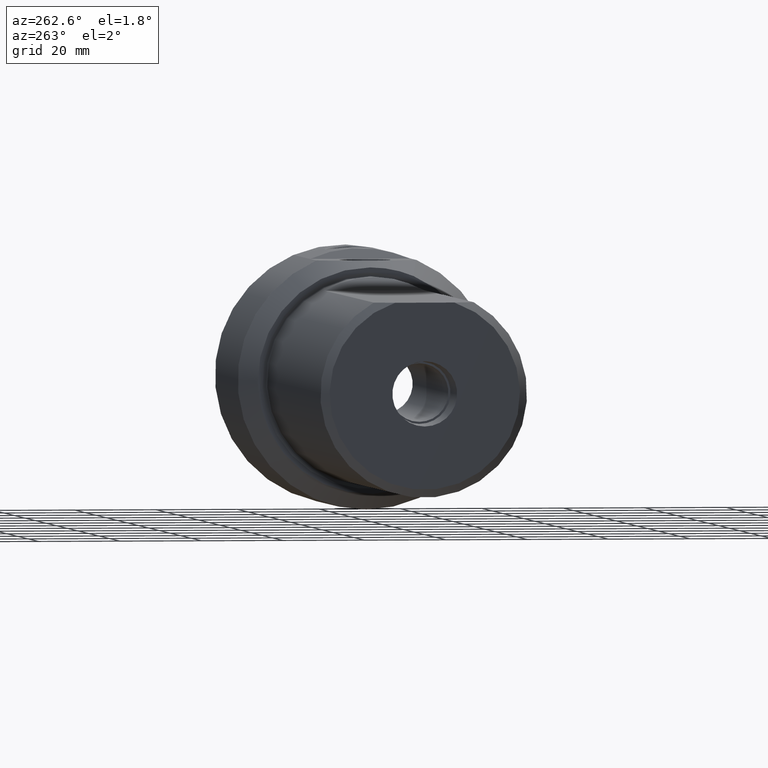
[diagram: clean part render]
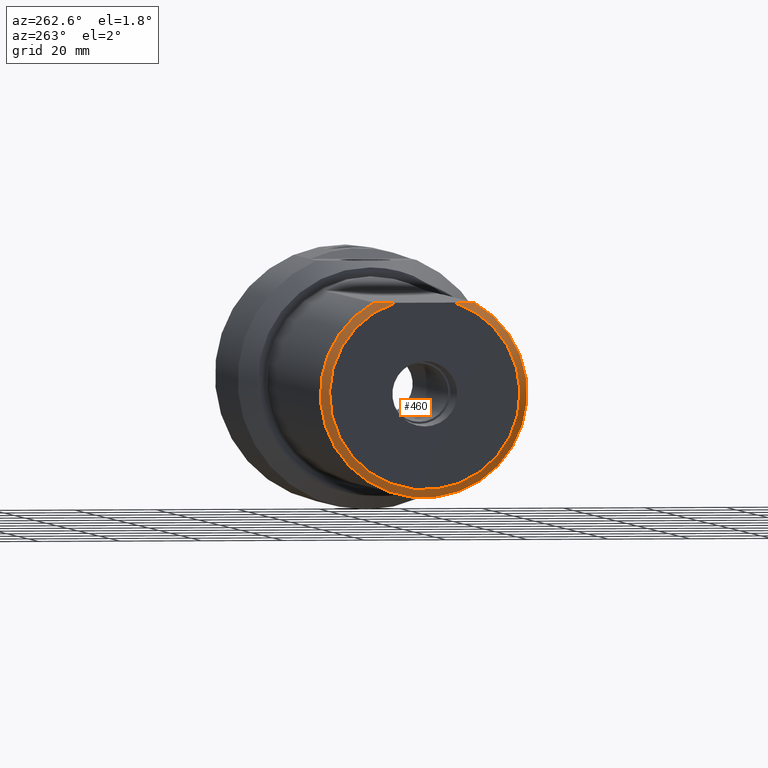
[diagram: same view with one face highlighted and labeled with its STEP entity id]
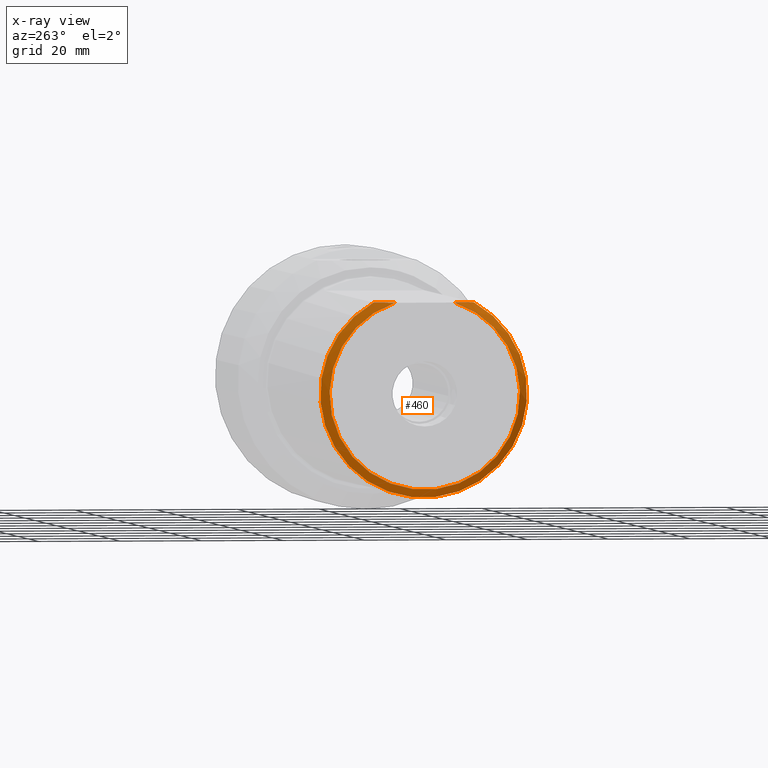
[diagram: x-ray of the same camera — body ghosted, the highlighted face saturated]
A machine part, auxiliary view. The second image highlights one B-rep face of the part: STEP entity #460.
The next image is the same camera in x-ray: the body ghosted, the highlighted face saturated — about 0% of this face is hidden behind the body in this view.
In plain terms, the highlighted conical surface has half-angle 45 deg.
Its self-contained STEP definition (entity closure, byte-faithful):
#13 = CARTESIAN_POINT ( 'NONE',  ( 1.999999999999992673, 0.0000000000000000000, 0.0000000000000000000 ) ) ;
#55 = CONICAL_SURFACE ( 'NONE', #146, 25.39499999999999957, 0.7853981633974497223 ) ;
#125 = CARTESIAN_POINT ( 'NONE',  ( 0.0000000000000000000, 0.0000000000000000000, 0.0000000000000000000 ) ) ;
#144 = CIRCLE ( 'NONE', #1590, 25.39499999999999957 ) ;
#146 = AXIS2_PLACEMENT_3D ( 'NONE', #1865, #1652, #2228 ) ;
#170 = CARTESIAN_POINT ( 'NONE',  ( 1.247595035765744376, 10.66130014700905626, 22.23000000000000043 ) ) ;
#199 = CARTESIAN_POINT ( 'NONE',  ( 1.999999999999992673, -12.27734193545166619, 22.23000000000000043 ) ) ;
#206 = CIRCLE ( 'NONE', #1118, 23.39500000000000313 ) ;
#268 = VERTEX_POINT ( 'NONE', #876 ) ;
#280 = CARTESIAN_POINT ( 'NONE',  ( 1.999999999999991340, 12.27734193545166619, 22.23000000000000043 ) ) ;
#349 = B_SPLINE_CURVE_WITH_KNOTS ( 'NONE', 3,
 ( #1432, #1803, #2196, #170, #371, #553 ),
 .UNSPECIFIED., .F., .F.,
 ( 4, 2, 4 ),
 ( 0.06986400231603798194, 0.07255246614353465240, 0.07524092997103132285 ),
 .UNSPECIFIED. ) ;
#352 = EDGE_CURVE ( 'NONE', #2202, #1568, #349, .T. ) ;
#371 = CARTESIAN_POINT ( 'NONE',  ( 1.612592265951199977, 11.47601055135454473, 22.23000000000000043 ) ) ;
#417 = CARTESIAN_POINT ( 'NONE',  ( 0.0000000000000000000, 7.290618972350712212, 22.23000000000000043 ) ) ;
#460 = ADVANCED_FACE ( 'NONE', ( #1466 ), #55, .T. ) ;
#553 = CARTESIAN_POINT ( 'NONE',  ( 1.999999999999991340, 12.27734193545166619, 22.23000000000000043 ) ) ;
#653 = ORIENTED_EDGE ( 'NONE', *, *, #744, .F. ) ;
#744 = EDGE_CURVE ( 'NONE', #2202, #268, #206, .T. ) ;
#837 = CARTESIAN_POINT ( 'NONE',  ( 1.999999999999992673, -12.27734193545166619, 22.23000000000000043 ) ) ;
#849 = DIRECTION ( 'NONE',  ( -1.000000000000000000, -0.0000000000000000000, -0.0000000000000000000 ) ) ;
#876 = CARTESIAN_POINT ( 'NONE',  ( 0.0000000000000000000, -7.290618972350712212, 22.23000000000000043 ) ) ;
#1036 = DIRECTION ( 'NONE',  ( 0.0000000000000000000, 0.0000000000000000000, 1.000000000000000000 ) ) ;
#1118 = AXIS2_PLACEMENT_3D ( 'NONE', #125, #849, #1036 ) ;
#1399 = ORIENTED_EDGE ( 'NONE', *, *, #1427, .T. ) ;
#1427 = EDGE_CURVE ( 'NONE', #2052, #268, #1689, .T. ) ;
#1432 = CARTESIAN_POINT ( 'NONE',  ( 0.0000000000000000000, 7.290618972350712212, 22.23000000000000043 ) ) ;
#1455 = EDGE_CURVE ( 'NONE', #1568, #2052, #144, .T. ) ;
#1466 = FACE_OUTER_BOUND ( 'NONE', #1917, .T. ) ;
#1568 = VERTEX_POINT ( 'NONE', #280 ) ;
#1590 = AXIS2_PLACEMENT_3D ( 'NONE', #13, #2031, #1838 ) ;
#1652 = DIRECTION ( 'NONE',  ( 1.000000000000000000, 0.0000000000000000000, 0.0000000000000000000 ) ) ;
#1689 = B_SPLINE_CURVE_WITH_KNOTS ( 'NONE', 3,
 ( #199, #1813, #2190, #2009 ),
 .UNSPECIFIED., .F., .F.,
 ( 4, 4 ),
 ( 0.04965705597090419587, 0.05503504284620091419 ),
 .UNSPECIFIED. ) ;
#1764 = ORIENTED_EDGE ( 'NONE', *, *, #352, .T. ) ;
#1803 = CARTESIAN_POINT ( 'NONE',  ( 0.2667945773146068733, 8.146740950463467357, 22.22999999999999687 ) ) ;
#1813 = CARTESIAN_POINT ( 'NONE',  ( 1.221059764948491333, -10.66614731587253928, 22.23000000000000043 ) ) ;
#1838 = DIRECTION ( 'NONE',  ( 0.0000000000000000000, 0.0000000000000000000, 1.000000000000000000 ) ) ;
#1865 = CARTESIAN_POINT ( 'NONE',  ( 1.999999999999992673, 0.0000000000000000000, 0.0000000000000000000 ) ) ;
#1917 = EDGE_LOOP ( 'NONE', ( #2154, #1399, #653, #1764 ) ) ;
#2009 = CARTESIAN_POINT ( 'NONE',  ( 0.0000000000000000000, -7.290618972350712212, 22.23000000000000043 ) ) ;
#2031 = DIRECTION ( 'NONE',  ( -1.000000000000000000, -0.0000000000000000000, -0.0000000000000000000 ) ) ;
#2052 = VERTEX_POINT ( 'NONE', #837 ) ;
#2154 = ORIENTED_EDGE ( 'NONE', *, *, #1455, .T. ) ;
#2190 = CARTESIAN_POINT ( 'NONE',  ( 0.5364557868656303352, -9.012061716967892266, 22.23000000000000043 ) ) ;
#2196 = CARTESIAN_POINT ( 'NONE',  ( 0.5748345547890947316, 8.997710781739439057, 22.23000000000000043 ) ) ;
#2202 = VERTEX_POINT ( 'NONE', #417 ) ;
#2228 = DIRECTION ( 'NONE',  ( 0.0000000000000000000, 0.0000000000000000000, -1.000000000000000000 ) ) ;